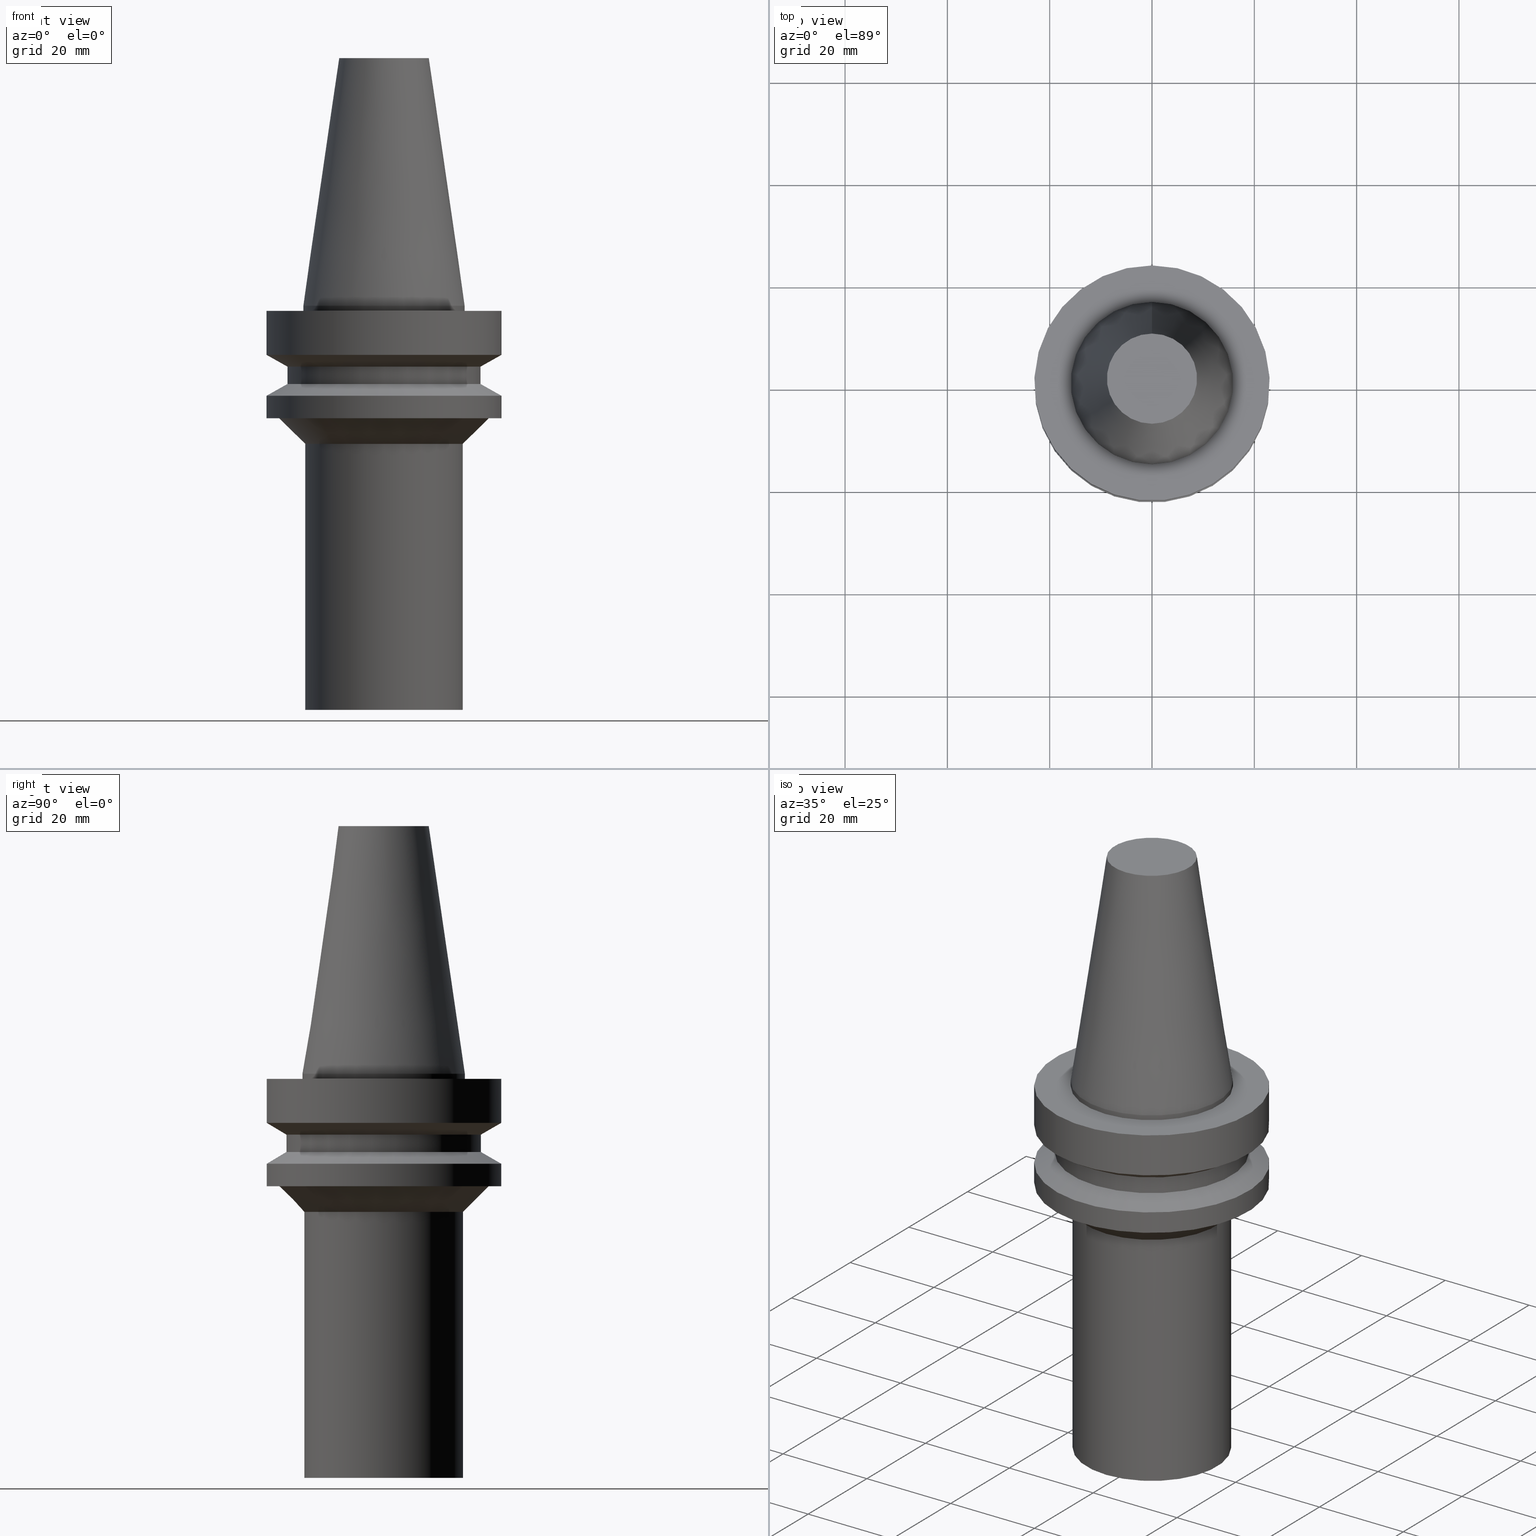
[diagram: canonical four-view strip — front | top / right | iso, engineering-drawing reading convention]
A machine part, canonical four-view strip (front | top / right | iso — engineering-drawing reading convention). The complete STEP part file that produces these views, byte-faithful:
ISO-10303-21;
HEADER;
FILE_DESCRIPTION((''),'1');
FILE_NAME('U:/Translate/21_DXF\X2\30C730FC30BF4F5C621057FA6E96\X0\/BBT30-CK3-120.stp','2016-12-09T00:14:57',(''),(''),'Spatial Interop R21 SP3','Kubotek KeyCreator 2011 V10.0.2 (22737)',' ');
FILE_SCHEMA(('automotive_design'));
ENDSEC;
DATA;
#1=MECHANICAL_DESIGN_GEOMETRIC_PRESENTATION_REPRESENTATION(' ',(#10,#11,#12,#13,#14,#15,#16,#17,#18,#19,#20,#21,#22,#23,#24,#25,#26,#27,#28,#29,#30,#31,#32,#33,#34,#35),#6);
#2=PRODUCT_DEFINITION_CONTEXT('',#36,'design');
#3=APPLICATION_PROTOCOL_DEFINITION('INTERNATIONAL STANDARD','automotive_design',1994,#36);
#4=PRODUCT_CATEGORY_RELATIONSHIP('NONE','NONE',#37,#38);
#5=SHAPE_DEFINITION_REPRESENTATION(#39,#40);
#6= (GEOMETRIC_REPRESENTATION_CONTEXT(3)GLOBAL_UNCERTAINTY_ASSIGNED_CONTEXT((#43))GLOBAL_UNIT_ASSIGNED_CONTEXT((#45,#46,#47))REPRESENTATION_CONTEXT('NONE','WORKSPACE'));
#10=STYLED_ITEM('',(#49,#50),#51);
#11=STYLED_ITEM('',(#52,#53),#54);
#12=STYLED_ITEM('',(#55),#56);
#13=STYLED_ITEM('',(#57,#58),#59);
#14=STYLED_ITEM('',(#60,#61),#62);
#15=STYLED_ITEM('',(#63),#64);
#16=STYLED_ITEM('',(#65,#66),#67);
#17=STYLED_ITEM('',(#68),#69);
#18=STYLED_ITEM('',(#70),#71);
#19=STYLED_ITEM('',(#72,#73),#74);
#20=STYLED_ITEM('',(#75),#76);
#21=STYLED_ITEM('',(#77),#78);
#22=STYLED_ITEM('',(#79,#80),#81);
#23=STYLED_ITEM('',(#82),#83);
#24=STYLED_ITEM('',(#84,#85),#86);
#25=STYLED_ITEM('',(#87,#88),#89);
#26=STYLED_ITEM('',(#90,#91),#92);
#27=STYLED_ITEM('',(#93,#94),#95);
#28=STYLED_ITEM('',(#96,#97),#98);
#29=STYLED_ITEM('',(#99),#100);
#30=STYLED_ITEM('',(#101,#102),#103);
#31=STYLED_ITEM('',(#104),#105);
#32=STYLED_ITEM('',(#106),#107);
#33=STYLED_ITEM('',(#108),#109);
#34=STYLED_ITEM('',(#110,#111),#112);
#35=STYLED_ITEM('',(#113),#114);
#36=APPLICATION_CONTEXT(' ');
#37=PRODUCT_CATEGORY('part','NONE');
#38=PRODUCT_RELATED_PRODUCT_CATEGORY('detail',' ',(#115));
#39=PRODUCT_DEFINITION_SHAPE('NONE','NONE',#116);
#40=ADVANCED_BREP_SHAPE_REPRESENTATION('Unnamed[1]',(#74,#117),#6);
#43=UNCERTAINTY_MEASURE_WITH_UNIT(LENGTH_MEASURE(1.0E-006),#45,'','');
#45= (CONVERSION_BASED_UNIT('MILLIMETRE',#120)LENGTH_UNIT()NAMED_UNIT(#123));
#46= (NAMED_UNIT(#125)PLANE_ANGLE_UNIT()SI_UNIT($,.RADIAN.));
#47= (NAMED_UNIT(#125)SOLID_ANGLE_UNIT()SI_UNIT($,.STERADIAN.));
#49=PRESENTATION_STYLE_ASSIGNMENT((#131));
#50=PRESENTATION_STYLE_ASSIGNMENT((#132));
#51=ADVANCED_FACE('Unnamed[1]',(#133,#134),#135,.T.);
#52=PRESENTATION_STYLE_ASSIGNMENT((#136));
#53=PRESENTATION_STYLE_ASSIGNMENT((#137));
#54=ADVANCED_FACE('Unnamed[1]',(#138,#139),#140,.T.);
#55=PRESENTATION_STYLE_ASSIGNMENT((#141));
#56=EDGE_CURVE('Unnamed[1]',#142,#142,#143,.T.);
#57=PRESENTATION_STYLE_ASSIGNMENT((#144));
#58=PRESENTATION_STYLE_ASSIGNMENT((#145));
#59=ADVANCED_FACE('Unnamed[1]',(#146,#147),#148,.T.);
#60=PRESENTATION_STYLE_ASSIGNMENT((#149));
#61=PRESENTATION_STYLE_ASSIGNMENT((#150));
#62=ADVANCED_FACE('Unnamed[1]',(#151,#152),#153,.T.);
#63=PRESENTATION_STYLE_ASSIGNMENT((#154));
#64=EDGE_CURVE('Unnamed[1]',#155,#155,#156,.T.);
#65=PRESENTATION_STYLE_ASSIGNMENT((#157));
#66=PRESENTATION_STYLE_ASSIGNMENT((#158));
#67=ADVANCED_FACE('Unnamed[1]',(#159,#160),#161,.T.);
#68=PRESENTATION_STYLE_ASSIGNMENT((#162));
#69=EDGE_CURVE('Unnamed[1]',#163,#163,#164,.T.);
#70=PRESENTATION_STYLE_ASSIGNMENT((#165));
#71=EDGE_CURVE('Unnamed[1]',#166,#166,#167,.T.);
#72=PRESENTATION_STYLE_ASSIGNMENT((#168));
#73=PRESENTATION_STYLE_ASSIGNMENT((#169));
#74=MANIFOLD_SOLID_BREP('Unnamed[1]',#170);
#75=PRESENTATION_STYLE_ASSIGNMENT((#171));
#76=EDGE_CURVE('Unnamed[1]',#172,#172,#173,.T.);
#77=PRESENTATION_STYLE_ASSIGNMENT((#174));
#78=EDGE_CURVE('Unnamed[1]',#175,#175,#176,.T.);
#79=PRESENTATION_STYLE_ASSIGNMENT((#177));
#80=PRESENTATION_STYLE_ASSIGNMENT((#178));
#81=ADVANCED_FACE('Unnamed[1]',(#179,#180),#181,.T.);
#82=PRESENTATION_STYLE_ASSIGNMENT((#182));
#83=EDGE_CURVE('Unnamed[1]',#183,#183,#184,.T.);
#84=PRESENTATION_STYLE_ASSIGNMENT((#185));
#85=PRESENTATION_STYLE_ASSIGNMENT((#186));
#86=ADVANCED_FACE('Unnamed[1]',(#187,#188),#189,.T.);
#87=PRESENTATION_STYLE_ASSIGNMENT((#190));
#88=PRESENTATION_STYLE_ASSIGNMENT((#191));
#89=ADVANCED_FACE('Unnamed[1]',(#192,#193),#194,.T.);
#90=PRESENTATION_STYLE_ASSIGNMENT((#195));
#91=PRESENTATION_STYLE_ASSIGNMENT((#196));
#92=ADVANCED_FACE('Unnamed[1]',(#197,#198),#199,.T.);
#93=PRESENTATION_STYLE_ASSIGNMENT((#200));
#94=PRESENTATION_STYLE_ASSIGNMENT((#201));
#95=ADVANCED_FACE('Unnamed[1]',(#202,#203),#204,.T.);
#96=PRESENTATION_STYLE_ASSIGNMENT((#205));
#97=PRESENTATION_STYLE_ASSIGNMENT((#206));
#98=ADVANCED_FACE('Unnamed[1]',(#207),#208,.T.);
#99=PRESENTATION_STYLE_ASSIGNMENT((#209));
#100=EDGE_CURVE('Unnamed[1]',#210,#210,#211,.T.);
#101=PRESENTATION_STYLE_ASSIGNMENT((#212));
#102=PRESENTATION_STYLE_ASSIGNMENT((#213));
#103=ADVANCED_FACE('Unnamed[1]',(#214,#215),#216,.T.);
#104=PRESENTATION_STYLE_ASSIGNMENT((#217));
#105=EDGE_CURVE('Unnamed[1]',#218,#218,#219,.T.);
#106=PRESENTATION_STYLE_ASSIGNMENT((#220));
#107=EDGE_CURVE('Unnamed[1]',#221,#221,#222,.T.);
#108=PRESENTATION_STYLE_ASSIGNMENT((#223));
#109=EDGE_CURVE('Unnamed[1]',#224,#224,#225,.T.);
#110=PRESENTATION_STYLE_ASSIGNMENT((#226));
#111=PRESENTATION_STYLE_ASSIGNMENT((#227));
#112=ADVANCED_FACE('Unnamed[1]',(#228),#229,.T.);
#113=PRESENTATION_STYLE_ASSIGNMENT((#230));
#114=EDGE_CURVE('Unnamed[1]',#231,#231,#232,.T.);
#115=PRODUCT('Unnamed[1]','Unnamed[1]','PART-Unnamed[1]-DESC',(#233));
#116=PRODUCT_DEFINITION('NONE','NONE',#234,#2);
#117=AXIS2_PLACEMENT_3D('',#235,#236,#237);
#120=LENGTH_MEASURE_WITH_UNIT(LENGTH_MEASURE(1.0),#238);
#123=DIMENSIONAL_EXPONENTS(1.0,0.0,0.0,0.0,0.0,0.0,0.0);
#125=DIMENSIONAL_EXPONENTS(0.0,0.0,0.0,0.0,0.0,0.0,0.0);
#131=SURFACE_STYLE_USAGE(.BOTH.,#239);
#132=CURVE_STYLE('',#240,POSITIVE_LENGTH_MEASURE(1000.0),#241);
#133=FACE_BOUND('',#242,.T.);
#134=FACE_BOUND('',#243,.T.);
#135=CONICAL_SURFACE('',#244,12.3457500009933,0.144815870013618);
#136=SURFACE_STYLE_USAGE(.BOTH.,#245);
#137=CURVE_STYLE('',#246,POSITIVE_LENGTH_MEASURE(1000.0),#247);
#138=FACE_BOUND('',#248,.T.);
#139=FACE_BOUND('',#249,.T.);
#140=CONICAL_SURFACE('',#250,18.0,0.785398163397448);
#141=CURVE_STYLE('',#251,POSITIVE_LENGTH_MEASURE(1000.0),#252);
#142=VERTEX_POINT('',#253);
#143=CIRCLE('',#254,23.0);
#144=SURFACE_STYLE_USAGE(.BOTH.,#255);
#145=CURVE_STYLE('',#256,POSITIVE_LENGTH_MEASURE(1000.0),#257);
#146=FACE_OUTER_BOUND('',#258,.T.);
#147=FACE_BOUND('',#259,.T.);
#148=PLANE('',#260);
#149=SURFACE_STYLE_USAGE(.BOTH.,#261);
#150=CURVE_STYLE('',#262,POSITIVE_LENGTH_MEASURE(1000.0),#263);
#151=FACE_BOUND('',#264,.T.);
#152=FACE_BOUND('',#265,.T.);
#153=CONICAL_SURFACE('',#266,21.0,1.04719755058882);
#154=CURVE_STYLE('',#267,POSITIVE_LENGTH_MEASURE(1000.0),#268);
#155=VERTEX_POINT('',#269);
#156=CIRCLE('',#270,15.5);
#157=SURFACE_STYLE_USAGE(.BOTH.,#271);
#158=CURVE_STYLE('',#272,POSITIVE_LENGTH_MEASURE(1000.0),#273);
#159=FACE_BOUND('',#274,.T.);
#160=FACE_BOUND('',#275,.T.);
#161=CYLINDRICAL_SURFACE('',#276,15.5);
#162=CURVE_STYLE('',#277,POSITIVE_LENGTH_MEASURE(1000.0),#278);
#163=VERTEX_POINT('',#279);
#164=CIRCLE('',#280,15.5);
#165=CURVE_STYLE('',#281,POSITIVE_LENGTH_MEASURE(1000.0),#282);
#166=VERTEX_POINT('',#283);
#167=CIRCLE('',#284,8.81650000198669);
#168=SURFACE_STYLE_USAGE(.BOTH.,#285);
#169=CURVE_STYLE('',#286,POSITIVE_LENGTH_MEASURE(1000.0),#287);
#170=CLOSED_SHELL('',(#98,#51,#89,#59,#81,#92,#86,#62,#95,#103,#54,#67,#112));
#171=CURVE_STYLE('',#288,POSITIVE_LENGTH_MEASURE(1000.0),#289);
#172=VERTEX_POINT('',#290);
#173=CIRCLE('',#291,19.0);
#174=CURVE_STYLE('',#292,POSITIVE_LENGTH_MEASURE(1000.0),#293);
#175=VERTEX_POINT('',#294);
#176=CIRCLE('',#295,15.875);
#177=SURFACE_STYLE_USAGE(.BOTH.,#296);
#178=CURVE_STYLE('',#297,POSITIVE_LENGTH_MEASURE(1000.0),#298);
#179=FACE_BOUND('',#299,.T.);
#180=FACE_BOUND('',#300,.T.);
#181=CYLINDRICAL_SURFACE('',#301,23.0);
#182=CURVE_STYLE('',#302,POSITIVE_LENGTH_MEASURE(1000.0),#303);
#183=VERTEX_POINT('',#304);
#184=CIRCLE('',#305,23.0);
#185=SURFACE_STYLE_USAGE(.BOTH.,#306);
#186=CURVE_STYLE('',#307,POSITIVE_LENGTH_MEASURE(1000.0),#308);
#187=FACE_BOUND('',#309,.T.);
#188=FACE_BOUND('',#310,.T.);
#189=CYLINDRICAL_SURFACE('',#311,19.0);
#190=SURFACE_STYLE_USAGE(.BOTH.,#312);
#191=CURVE_STYLE('',#313,POSITIVE_LENGTH_MEASURE(1000.0),#314);
#192=FACE_BOUND('',#315,.T.);
#193=FACE_BOUND('',#316,.T.);
#194=CYLINDRICAL_SURFACE('',#317,15.875);
#195=SURFACE_STYLE_USAGE(.BOTH.,#318);
#196=CURVE_STYLE('',#319,POSITIVE_LENGTH_MEASURE(1000.0),#320);
#197=FACE_BOUND('',#321,.T.);
#198=FACE_BOUND('',#322,.T.);
#199=CONICAL_SURFACE('',#323,21.0,1.04719755058881);
#200=SURFACE_STYLE_USAGE(.BOTH.,#324);
#201=CURVE_STYLE('',#325,POSITIVE_LENGTH_MEASURE(1000.0),#326);
#202=FACE_BOUND('',#327,.T.);
#203=FACE_BOUND('',#328,.T.);
#204=CYLINDRICAL_SURFACE('',#329,23.0);
#205=SURFACE_STYLE_USAGE(.BOTH.,#330);
#206=CURVE_STYLE('',#331,POSITIVE_LENGTH_MEASURE(1000.0),#332);
#207=FACE_OUTER_BOUND('',#333,.T.);
#208=PLANE('',#334);
#209=CURVE_STYLE('',#335,POSITIVE_LENGTH_MEASURE(1000.0),#336);
#210=VERTEX_POINT('',#337);
#211=CIRCLE('',#338,23.0);
#212=SURFACE_STYLE_USAGE(.BOTH.,#339);
#213=CURVE_STYLE('',#340,POSITIVE_LENGTH_MEASURE(1000.0),#341);
#214=FACE_BOUND('',#342,.T.);
#215=FACE_OUTER_BOUND('',#343,.T.);
#216=PLANE('',#344);
#217=CURVE_STYLE('',#345,POSITIVE_LENGTH_MEASURE(1000.0),#346);
#218=VERTEX_POINT('',#347);
#219=CIRCLE('',#348,19.0);
#220=CURVE_STYLE('',#349,POSITIVE_LENGTH_MEASURE(1000.0),#350);
#221=VERTEX_POINT('',#351);
#222=CIRCLE('',#352,20.5);
#223=CURVE_STYLE('',#353,POSITIVE_LENGTH_MEASURE(1000.0),#354);
#224=VERTEX_POINT('',#355);
#225=CIRCLE('',#356,23.0);
#226=SURFACE_STYLE_USAGE(.BOTH.,#357);
#227=CURVE_STYLE('',#358,POSITIVE_LENGTH_MEASURE(1000.0),#359);
#228=FACE_OUTER_BOUND('',#360,.T.);
#229=PLANE('',#361);
#230=CURVE_STYLE('',#362,POSITIVE_LENGTH_MEASURE(1000.0),#363);
#231=VERTEX_POINT('',#364);
#232=CIRCLE('',#365,15.875);
#233=PRODUCT_CONTEXT('',#36,'mechanical');
#234=PRODUCT_DEFINITION_FORMATION_WITH_SPECIFIED_SOURCE(' ','NONE',#115,.NOT_KNOWN.);
#235=CARTESIAN_POINT('',(0.0,0.0,0.0));
#236=DIRECTION('',(0.0,0.0,1.0));
#237=DIRECTION('',(1.0,0.0,0.0));
#238= (NAMED_UNIT(#123)LENGTH_UNIT()SI_UNIT(.MILLI.,.METRE.));
#239=SURFACE_SIDE_STYLE('',(#367));
#240=DRAUGHTING_PRE_DEFINED_CURVE_FONT('continuous');
#241=COLOUR_RGB('',0.0,1.0,0.0);
#242=EDGE_LOOP('',(#368));
#243=EDGE_LOOP('',(#369));
#244=AXIS2_PLACEMENT_3D('',#370,#371,#372);
#245=SURFACE_SIDE_STYLE('',(#373));
#246=DRAUGHTING_PRE_DEFINED_CURVE_FONT('continuous');
#247=COLOUR_RGB('',0.0,1.0,0.0);
#248=EDGE_LOOP('',(#374));
#249=EDGE_LOOP('',(#375));
#250=AXIS2_PLACEMENT_3D('',#376,#377,#378);
#251=DRAUGHTING_PRE_DEFINED_CURVE_FONT('continuous');
#252=COLOUR_RGB('',0.0,1.0,0.0);
#253=CARTESIAN_POINT('',(4.88498130835069E-015,23.0,-22.0));
#254=AXIS2_PLACEMENT_3D('',#379,#380,#381);
#255=SURFACE_SIDE_STYLE('',(#382));
#256=DRAUGHTING_PRE_DEFINED_CURVE_FONT('continuous');
#257=COLOUR_RGB('',0.0,1.0,0.0);
#258=EDGE_LOOP('',(#383));
#259=EDGE_LOOP('',(#384));
#260=AXIS2_PLACEMENT_3D('',#385,#386,#387);
#261=SURFACE_SIDE_STYLE('',(#388));
#262=DRAUGHTING_PRE_DEFINED_CURVE_FONT('continuous');
#263=COLOUR_RGB('',0.0,1.0,0.0);
#264=EDGE_LOOP('',(#389));
#265=EDGE_LOOP('',(#390));
#266=AXIS2_PLACEMENT_3D('',#391,#392,#393);
#267=DRAUGHTING_PRE_DEFINED_CURVE_FONT('continuous');
#268=COLOUR_RGB('',0.0,1.0,0.0);
#269=CARTESIAN_POINT('',(1.75415237890776E-014,15.5,-79.0000000000008));
#270=AXIS2_PLACEMENT_3D('',#394,#395,#396);
#271=SURFACE_SIDE_STYLE('',(#397));
#272=DRAUGHTING_PRE_DEFINED_CURVE_FONT('continuous');
#273=COLOUR_RGB('',0.0,1.0,0.0);
#274=EDGE_LOOP('',(#398));
#275=EDGE_LOOP('',(#399));
#276=AXIS2_PLACEMENT_3D('',#400,#401,#402);
#277=DRAUGHTING_PRE_DEFINED_CURVE_FONT('continuous');
#278=COLOUR_RGB('',0.0,1.0,0.0);
#279=CARTESIAN_POINT('',(5.99520433297585E-015,15.5,-27.0));
#280=AXIS2_PLACEMENT_3D('',#403,#404,#405);
#281=DRAUGHTING_PRE_DEFINED_CURVE_FONT('continuous');
#282=COLOUR_RGB('',0.0,1.0,0.0);
#283=CARTESIAN_POINT('',(-1.07469588783715E-014,8.81650000198669,48.4));
#284=AXIS2_PLACEMENT_3D('',#406,#407,#408);
#285=SURFACE_SIDE_STYLE('',(#409));
#286=DRAUGHTING_PRE_DEFINED_CURVE_FONT('continuous');
#287=COLOUR_RGB('',0.0,1.0,0.0);
#288=DRAUGHTING_PRE_DEFINED_CURVE_FONT('continuous');
#289=COLOUR_RGB('',0.0,1.0,0.0);
#290=CARTESIAN_POINT('',(2.64441825770234E-015,19.0,-11.90940108));
#291=AXIS2_PLACEMENT_3D('',#410,#411,#412);
#292=DRAUGHTING_PRE_DEFINED_CURVE_FONT('continuous');
#293=COLOUR_RGB('',0.0,1.0,0.0);
#294=CARTESIAN_POINT('',(2.22044604925031E-016,15.875,-0.999999999999998));
#295=AXIS2_PLACEMENT_3D('',#413,#414,#415);
#296=SURFACE_SIDE_STYLE('',(#416));
#297=DRAUGHTING_PRE_DEFINED_CURVE_FONT('continuous');
#298=COLOUR_RGB('',0.0,1.0,0.0);
#299=EDGE_LOOP('',(#417));
#300=EDGE_LOOP('',(#418));
#301=AXIS2_PLACEMENT_3D('',#419,#420,#421);
#302=DRAUGHTING_PRE_DEFINED_CURVE_FONT('continuous');
#303=COLOUR_RGB('',0.0,1.0,0.0);
#304=CARTESIAN_POINT('',(3.90798504668055E-015,23.0,-17.6));
#305=AXIS2_PLACEMENT_3D('',#422,#423,#424);
#306=SURFACE_SIDE_STYLE('',(#425));
#307=DRAUGHTING_PRE_DEFINED_CURVE_FONT('continuous');
#308=COLOUR_RGB('',0.0,1.0,0.0);
#309=EDGE_LOOP('',(#426));
#310=EDGE_LOOP('',(#427));
#311=AXIS2_PLACEMENT_3D('',#428,#429,#430);
#312=SURFACE_SIDE_STYLE('',(#431));
#313=DRAUGHTING_PRE_DEFINED_CURVE_FONT('continuous');
#314=COLOUR_RGB('',0.0,1.0,0.0);
#315=EDGE_LOOP('',(#432));
#316=EDGE_LOOP('',(#433));
#317=AXIS2_PLACEMENT_3D('',#434,#435,#436);
#318=SURFACE_SIDE_STYLE('',(#437));
#319=DRAUGHTING_PRE_DEFINED_CURVE_FONT('continuous');
#320=COLOUR_RGB('',0.0,1.0,0.0);
#321=EDGE_LOOP('',(#438));
#322=EDGE_LOOP('',(#439));
#323=AXIS2_PLACEMENT_3D('',#440,#441,#442);
#324=SURFACE_SIDE_STYLE('',(#443));
#325=DRAUGHTING_PRE_DEFINED_CURVE_FONT('continuous');
#326=COLOUR_RGB('',0.0,1.0,0.0);
#327=EDGE_LOOP('',(#444));
#328=EDGE_LOOP('',(#445));
#329=AXIS2_PLACEMENT_3D('',#446,#447,#448);
#330=SURFACE_SIDE_STYLE('',(#449));
#331=DRAUGHTING_PRE_DEFINED_CURVE_FONT('continuous');
#332=COLOUR_RGB('',0.0,1.0,0.0);
#333=EDGE_LOOP('',(#450));
#334=AXIS2_PLACEMENT_3D('',#451,#452,#453);
#335=DRAUGHTING_PRE_DEFINED_CURVE_FONT('continuous');
#336=COLOUR_RGB('',0.0,1.0,0.0);
#337=CARTESIAN_POINT('',(2.22044604925031E-016,23.0,-0.999999999999997));
#338=AXIS2_PLACEMENT_3D('',#454,#455,#456);
#339=SURFACE_SIDE_STYLE('',(#457));
#340=DRAUGHTING_PRE_DEFINED_CURVE_FONT('continuous');
#341=COLOUR_RGB('',0.0,1.0,0.0);
#342=EDGE_LOOP('',(#458));
#343=EDGE_LOOP('',(#459));
#344=AXIS2_PLACEMENT_3D('',#460,#461,#462);
#345=DRAUGHTING_PRE_DEFINED_CURVE_FONT('continuous');
#346=COLOUR_RGB('',0.0,1.0,0.0);
#347=CARTESIAN_POINT('',(3.39519499625851E-015,19.0,-15.29059892));
#348=AXIS2_PLACEMENT_3D('',#463,#464,#465);
#349=DRAUGHTING_PRE_DEFINED_CURVE_FONT('continuous');
#350=COLOUR_RGB('',0.0,1.0,0.0);
#351=CARTESIAN_POINT('',(4.88498130835069E-015,20.5,-22.0));
#352=AXIS2_PLACEMENT_3D('',#466,#467,#468);
#353=DRAUGHTING_PRE_DEFINED_CURVE_FONT('continuous');
#354=COLOUR_RGB('',0.0,1.0,0.0);
#355=CARTESIAN_POINT('',(2.1316282072803E-015,23.0,-9.59999999999999));
#356=AXIS2_PLACEMENT_3D('',#469,#470,#471);
#357=SURFACE_SIDE_STYLE('',(#472));
#358=DRAUGHTING_PRE_DEFINED_CURVE_FONT('continuous');
#359=COLOUR_RGB('',0.0,1.0,0.0);
#360=EDGE_LOOP('',(#473));
#361=AXIS2_PLACEMENT_3D('',#474,#475,#476);
#362=DRAUGHTING_PRE_DEFINED_CURVE_FONT('continuous');
#363=COLOUR_RGB('',0.0,1.0,0.0);
#364=CARTESIAN_POINT('',(-9.78372411748716E-032,15.875,1.94412679364642E-015));
#365=AXIS2_PLACEMENT_3D('',#477,#478,#479);
#367=SURFACE_STYLE_FILL_AREA(#480);
#368=ORIENTED_EDGE('',*,*,#114,.F.);
#369=ORIENTED_EDGE('',*,*,#71,.T.);
#370=CARTESIAN_POINT('',(-5.37347943918576E-015,-2.96364525393659E-015,24.2));
#371=DIRECTION('',(2.22044604925031E-016,1.22464679914735E-016,-1.0));
#372=DIRECTION('',(-6.16297582203915E-033,1.0,1.22464679914735E-016));
#373=SURFACE_STYLE_FILL_AREA(#481);
#374=ORIENTED_EDGE('',*,*,#69,.F.);
#375=ORIENTED_EDGE('',*,*,#107,.T.);
#376=CARTESIAN_POINT('',(5.44009282066327E-015,3.00038465791101E-015,-24.5));
#377=DIRECTION('',(-2.22044604925031E-016,-1.22464679914735E-016,1.0));
#378=DIRECTION('',(-6.16297582203915E-033,1.0,1.22464679914735E-016));
#379=CARTESIAN_POINT('',(4.88498130835069E-015,2.69422295812418E-015,-22.0));
#380=DIRECTION('',(2.22044604925031E-016,1.22464679914735E-016,-1.0));
#381=DIRECTION('',(-6.16297582203915E-033,1.0,1.22464679914735E-016));
#382=SURFACE_STYLE_FILL_AREA(#482);
#383=ORIENTED_EDGE('',*,*,#100,.F.);
#384=ORIENTED_EDGE('',*,*,#78,.T.);
#385=CARTESIAN_POINT('',(2.22044604925031E-016,19.4375,-0.999999999999998));
#386=DIRECTION('',(-2.22044604925031E-016,-1.22464679914735E-016,1.0));
#387=DIRECTION('',(6.16297582203915E-033,-1.0,-1.22464679914735E-016));
#388=SURFACE_STYLE_FILL_AREA(#483);
#389=ORIENTED_EDGE('',*,*,#83,.F.);
#390=ORIENTED_EDGE('',*,*,#105,.T.);
#391=CARTESIAN_POINT('',(3.65159002146953E-015,2.01396833447087E-015,-16.44529946));
#392=DIRECTION('',(2.22044604925031E-016,1.22464679914735E-016,-1.0));
#393=DIRECTION('',(-6.16297582203915E-033,1.0,1.22464679914735E-016));
#394=CARTESIAN_POINT('',(1.75415237890776E-014,9.67470971326418E-015,-79.0000000000008));
#395=DIRECTION('',(2.22044604925031E-016,1.22464679914735E-016,-1.0));
#396=DIRECTION('',(-6.16297582203915E-033,1.0,1.22464679914735E-016));
#397=SURFACE_STYLE_FILL_AREA(#484);
#398=ORIENTED_EDGE('',*,*,#64,.F.);
#399=ORIENTED_EDGE('',*,*,#69,.T.);
#400=CARTESIAN_POINT('',(1.17683640610267E-014,6.49062803548102E-015,-53.0000000000004));
#401=DIRECTION('',(2.22044604925031E-016,1.22464679914735E-016,-1.0));
#402=DIRECTION('',(-6.16297582203915E-033,1.0,1.22464679914735E-016));
#403=CARTESIAN_POINT('',(5.99520433297585E-015,3.30654635769785E-015,-27.0));
#404=DIRECTION('',(2.22044604925031E-016,1.22464679914735E-016,-1.0));
#405=DIRECTION('',(-6.16297582203915E-033,1.0,1.22464679914735E-016));
#406=CARTESIAN_POINT('',(-1.07469588783715E-014,-5.92729050787319E-015,48.4));
#407=DIRECTION('',(2.22044604925031E-016,1.22464679914735E-016,-1.0));
#408=DIRECTION('',(-6.16297582203915E-033,1.0,1.22464679914735E-016));
#409=SURFACE_STYLE_FILL_AREA(#485);
#410=CARTESIAN_POINT('',(2.64441825770234E-015,1.4584809912384E-015,-11.90940108));
#411=DIRECTION('',(2.22044604925031E-016,1.22464679914735E-016,-1.0));
#412=DIRECTION('',(-6.16297582203915E-033,1.0,1.22464679914735E-016));
#413=CARTESIAN_POINT('',(2.22044604925031E-016,1.22464679914735E-016,-1.0));
#414=DIRECTION('',(2.22044604925031E-016,1.22464679914735E-016,-1.0));
#415=DIRECTION('',(-6.16297582203915E-033,1.0,1.22464679914735E-016));
#416=SURFACE_STYLE_FILL_AREA(#486);
#417=ORIENTED_EDGE('',*,*,#109,.F.);
#418=ORIENTED_EDGE('',*,*,#100,.T.);
#419=CARTESIAN_POINT('',(1.17683640610267E-015,6.49062803548097E-016,-5.3));
#420=DIRECTION('',(2.22044604925031E-016,1.22464679914735E-016,-1.0));
#421=DIRECTION('',(-6.16297582203915E-033,1.0,1.22464679914735E-016));
#422=CARTESIAN_POINT('',(3.90798504668055E-015,2.15537836649934E-015,-17.6));
#423=DIRECTION('',(2.22044604925031E-016,1.22464679914735E-016,-1.0));
#424=DIRECTION('',(-6.16297582203915E-033,1.0,1.22464679914735E-016));
#425=SURFACE_STYLE_FILL_AREA(#487);
#426=ORIENTED_EDGE('',*,*,#105,.F.);
#427=ORIENTED_EDGE('',*,*,#76,.T.);
#428=CARTESIAN_POINT('',(3.01980662698043E-015,1.6655196468404E-015,-13.6));
#429=DIRECTION('',(2.22044604925031E-016,1.22464679914735E-016,-1.0));
#430=DIRECTION('',(-6.16297582203915E-033,1.0,1.22464679914735E-016));
#431=SURFACE_STYLE_FILL_AREA(#488);
#432=ORIENTED_EDGE('',*,*,#78,.F.);
#433=ORIENTED_EDGE('',*,*,#114,.T.);
#434=CARTESIAN_POINT('',(1.11022302462516E-016,6.12323399573676E-017,-0.5));
#435=DIRECTION('',(2.22044604925031E-016,1.22464679914735E-016,-1.0));
#436=DIRECTION('',(-6.16297582203915E-033,1.0,1.22464679914735E-016));
#437=SURFACE_STYLE_FILL_AREA(#489);
#438=ORIENTED_EDGE('',*,*,#76,.F.);
#439=ORIENTED_EDGE('',*,*,#109,.T.);
#440=CARTESIAN_POINT('',(2.38802323249132E-015,1.31707095920993E-015,-10.75470054));
#441=DIRECTION('',(-2.22044604925031E-016,-1.22464679914735E-016,1.0));
#442=DIRECTION('',(-6.16297582203915E-033,1.0,1.22464679914735E-016));
#443=SURFACE_STYLE_FILL_AREA(#490);
#444=ORIENTED_EDGE('',*,*,#56,.F.);
#445=ORIENTED_EDGE('',*,*,#83,.T.);
#446=CARTESIAN_POINT('',(4.39648317751562E-015,2.42480066231176E-015,-19.8));
#447=DIRECTION('',(2.22044604925031E-016,1.22464679914735E-016,-1.0));
#448=DIRECTION('',(-6.16297582203915E-033,1.0,1.22464679914735E-016));
#449=SURFACE_STYLE_FILL_AREA(#491);
#450=ORIENTED_EDGE('',*,*,#71,.F.);
#451=CARTESIAN_POINT('',(-1.07469588783715E-014,4.40825000099334,48.4));
#452=DIRECTION('',(-2.22044604925031E-016,-1.22464679914735E-016,1.0));
#453=DIRECTION('',(6.16297582203915E-033,-1.0,-1.22464679914735E-016));
#454=CARTESIAN_POINT('',(2.22044604925031E-016,1.22464679914735E-016,-1.0));
#455=DIRECTION('',(2.22044604925031E-016,1.22464679914735E-016,-1.0));
#456=DIRECTION('',(-6.16297582203915E-033,1.0,1.22464679914735E-016));
#457=SURFACE_STYLE_FILL_AREA(#492);
#458=ORIENTED_EDGE('',*,*,#107,.F.);
#459=ORIENTED_EDGE('',*,*,#56,.T.);
#460=CARTESIAN_POINT('',(4.88498130835069E-015,21.75,-22.0));
#461=DIRECTION('',(2.22044604925031E-016,1.22464679914735E-016,-1.0));
#462=DIRECTION('',(-6.16297582203915E-033,1.0,1.22464679914735E-016));
#463=CARTESIAN_POINT('',(3.39519499625851E-015,1.8725583024424E-015,-15.29059892));
#464=DIRECTION('',(2.22044604925031E-016,1.22464679914735E-016,-1.0));
#465=DIRECTION('',(-6.16297582203915E-033,1.0,1.22464679914735E-016));
#466=CARTESIAN_POINT('',(4.88498130835069E-015,2.69422295812418E-015,-22.0));
#467=DIRECTION('',(2.22044604925031E-016,1.22464679914735E-016,-1.0));
#468=DIRECTION('',(-6.16297582203915E-033,1.0,1.22464679914735E-016));
#469=CARTESIAN_POINT('',(2.1316282072803E-015,1.17566092718146E-015,-9.59999999999999));
#470=DIRECTION('',(2.22044604925031E-016,1.22464679914735E-016,-1.0));
#471=DIRECTION('',(-6.16297582203915E-033,1.0,1.22464679914735E-016));
#472=SURFACE_STYLE_FILL_AREA(#493);
#473=ORIENTED_EDGE('',*,*,#64,.T.);
#474=CARTESIAN_POINT('',(1.75415237890776E-014,7.75000000000001,-79.0000000000008));
#475=DIRECTION('',(2.22044604925031E-016,1.22464679914735E-016,-1.0));
#476=DIRECTION('',(-6.16297582203915E-033,1.0,1.22464679914735E-016));
#477=CARTESIAN_POINT('',(0.0,0.0,0.0));
#478=DIRECTION('',(2.22044604925031E-016,1.22464679914735E-016,-1.0));
#479=DIRECTION('',(-6.16297582203915E-033,1.0,1.22464679914735E-016));
#480=FILL_AREA_STYLE('',(#494));
#481=FILL_AREA_STYLE('',(#495));
#482=FILL_AREA_STYLE('',(#496));
#483=FILL_AREA_STYLE('',(#497));
#484=FILL_AREA_STYLE('',(#498));
#485=FILL_AREA_STYLE('',(#499));
#486=FILL_AREA_STYLE('',(#500));
#487=FILL_AREA_STYLE('',(#501));
#488=FILL_AREA_STYLE('',(#502));
#489=FILL_AREA_STYLE('',(#503));
#490=FILL_AREA_STYLE('',(#504));
#491=FILL_AREA_STYLE('',(#505));
#492=FILL_AREA_STYLE('',(#506));
#493=FILL_AREA_STYLE('',(#507));
#494=FILL_AREA_STYLE_COLOUR('',#508);
#495=FILL_AREA_STYLE_COLOUR('',#509);
#496=FILL_AREA_STYLE_COLOUR('',#510);
#497=FILL_AREA_STYLE_COLOUR('',#511);
#498=FILL_AREA_STYLE_COLOUR('',#512);
#499=FILL_AREA_STYLE_COLOUR('',#513);
#500=FILL_AREA_STYLE_COLOUR('',#514);
#501=FILL_AREA_STYLE_COLOUR('',#515);
#502=FILL_AREA_STYLE_COLOUR('',#516);
#503=FILL_AREA_STYLE_COLOUR('',#517);
#504=FILL_AREA_STYLE_COLOUR('',#518);
#505=FILL_AREA_STYLE_COLOUR('',#519);
#506=FILL_AREA_STYLE_COLOUR('',#520);
#507=FILL_AREA_STYLE_COLOUR('',#521);
#508=COLOUR_RGB('',0.0,1.0,0.0);
#509=COLOUR_RGB('',0.0,1.0,0.0);
#510=COLOUR_RGB('',0.0,1.0,0.0);
#511=COLOUR_RGB('',0.0,1.0,0.0);
#512=COLOUR_RGB('',0.0,1.0,0.0);
#513=COLOUR_RGB('',0.0,1.0,0.0);
#514=COLOUR_RGB('',0.0,1.0,0.0);
#515=COLOUR_RGB('',0.0,1.0,0.0);
#516=COLOUR_RGB('',0.0,1.0,0.0);
#517=COLOUR_RGB('',0.0,1.0,0.0);
#518=COLOUR_RGB('',0.0,1.0,0.0);
#519=COLOUR_RGB('',0.0,1.0,0.0);
#520=COLOUR_RGB('',0.0,1.0,0.0);
#521=COLOUR_RGB('',0.0,1.0,0.0);
ENDSEC;
END-ISO-10303-21;
